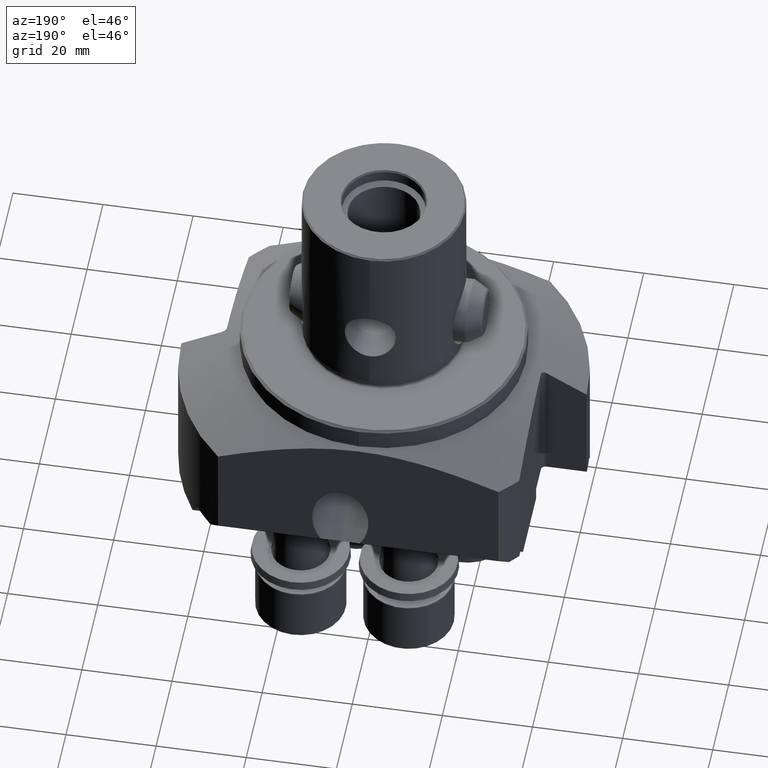
[diagram: clean part render]
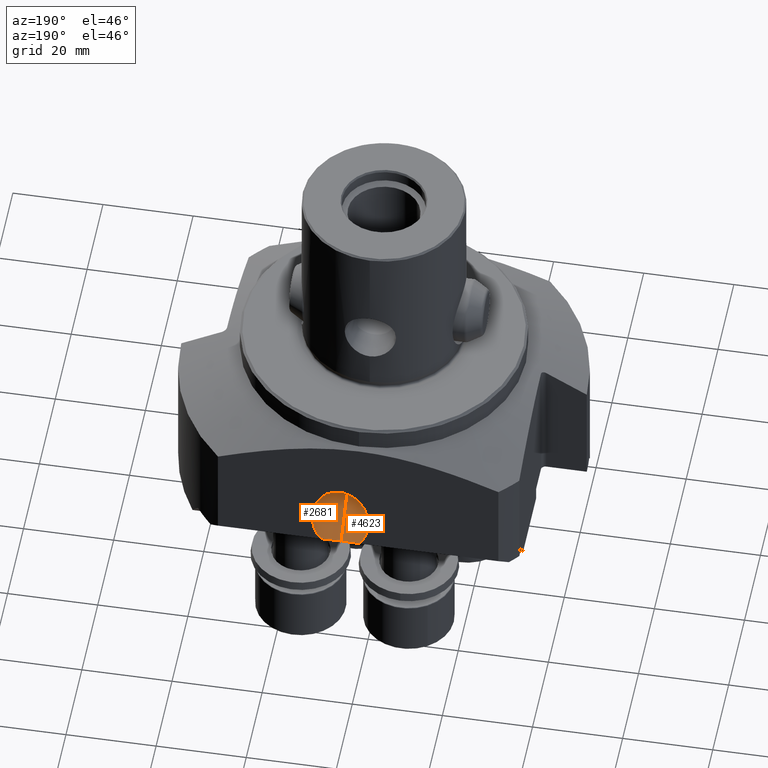
[diagram: same view with one multi-face feature highlighted, each face labeled with its STEP entity id]
A machine part, auxiliary view. The highlighted faces form ONE feature: a constant-radius fillet chain: 2 tangent blend faces with common blend radius 6.25 mm. The faces share edges in the B-rep.
Their STEP definitions:
[1] entity #4623 (Cylinder):
#2337=EDGE_CURVE('NONE',#3913,#3891,#6474,.T.);
#2583=EDGE_CURVE('NONE',#3209,#3891,#6763,.T.);
#2761=EDGE_CURVE('NONE',#3613,#3913,#6967,.T.);
#2847=VERTEX_POINT('NONE',#7060);
#3209=VERTEX_POINT('NONE',#7462);
#3613=VERTEX_POINT('NONE',#7911);
#3745=EDGE_CURVE('NONE',#2847,#3613,#8066,.T.);
#3891=VERTEX_POINT('NONE',#8224);
#3913=VERTEX_POINT('NONE',#8249);
#4005=EDGE_CURVE('NONE',#2847,#3209,#8351,.T.);
#4623=ADVANCED_FACE('NONE',(#9052),#9053,.F.);
#6474=(B_SPLINE_CURVE(3,(#11189,#11190,#11191,#11192),.UNSPECIFIED.,.F.,.F.)B_SPLINE_CURVE_WITH_KNOTS((4,4),(3.14159265358978,5.53863255819968),.UNSPECIFIED.)RATIONAL_B_SPLINE_CURVE((1.0,0.575824546262807,0.575824546262807,1.0))BOUNDED_CURVE()REPRESENTATION_ITEM('')GEOMETRIC_REPRESENTATION_ITEM()CURVE());
#6763=CIRCLE('',#11614,6.25);
#6967=LINE('',#11916,#11917);
#7060=CARTESIAN_POINT('',(4.00000000000012,17.4739808997859,-21.812815664618));
#7462=CARTESIAN_POINT('',(4.00000000000022,31.3305826175839,-35.6694173824161));
#7911=CARTESIAN_POINT('',(4.00000000000018,26.3128156646177,-12.9739808997862));
#8066=CIRCLE('',#13527,6.25);
#8224=CARTESIAN_POINT('',(-0.235268586524423,32.5,-34.5));
#8249=CARTESIAN_POINT('',(4.00000000000023,32.5,-19.1611652351685));
#8351=LINE('',#13952,#13953);
#9052=FACE_OUTER_BOUND('',#15051,.T.);
#9053=CYLINDRICAL_SURFACE('',#15052,6.25);
#11189=CARTESIAN_POINT('',(4.00000000000023,32.5,-19.1611652351685));
#11190=CARTESIAN_POINT('',(-2.74034712927806,32.5,-19.1611652351684));
#11191=CARTESIAN_POINT('',(-5.19205955569464,32.5,-28.0405104364009));
#11192=CARTESIAN_POINT('',(-0.235268586524423,32.5,-34.5));
#11614=AXIS2_PLACEMENT_3D('',#18521,#18522,#18523);
#11916=CARTESIAN_POINT('',(4.00000000000034,48.5202044210105,-35.1813696561791));
#11917=VECTOR('',#18795,1000.0);
#13527=AXIS2_PLACEMENT_3D('',#20148,#20149,#20150);
#13952=CARTESIAN_POINT('',(4.00000000000028,39.6813696561786,-44.0202044210109));
#13953=VECTOR('',#20503,1000.0);
#15051=EDGE_LOOP('',(#21405,#21406,#21407,#21408,#21409));
#15052=AXIS2_PLACEMENT_3D('',#21410,#21411,#21412);
#18521=CARTESIAN_POINT('',(4.00000000000025,35.7499999999998,-31.2500000000002));
#18522=DIRECTION('',(0.0,0.707106781186545,-0.70710678118655));
#18523=DIRECTION('',(0.0,0.70710678118655,0.707106781186545));
#18795=DIRECTION('',(4.95161029716453E-015,0.707106781186544,-0.707106781186551));
#20148=CARTESIAN_POINT('',(4.00000000000015,21.8933982822018,-17.3933982822021));
#20149=DIRECTION('',(4.95161029716453E-015,0.707106781186544,-0.707106781186551));
#20150=DIRECTION('',(4.99600361081321E-015,0.707106781186551,0.707106781186544));
#20503=DIRECTION('',(4.95161029716453E-015,0.707106781186544,-0.707106781186551));
#21405=ORIENTED_EDGE('',*,*,#3745,.F.);
#21406=ORIENTED_EDGE('',*,*,#4005,.T.);
#21407=ORIENTED_EDGE('',*,*,#2583,.T.);
#21408=ORIENTED_EDGE('',*,*,#2337,.F.);
#21409=ORIENTED_EDGE('',*,*,#2761,.F.);
#21410=CARTESIAN_POINT('',(4.00000000000031,44.1007870385946,-39.600787038595));
#21411=DIRECTION('',(4.95161029716453E-015,0.707106781186544,-0.707106781186551));
#21412=DIRECTION('',(4.9960036108132E-015,0.707106781186551,0.707106781186544));
[2] entity #2681 (Cylinder):
#2681=ADVANCED_FACE('NONE',(#6878),#6879,.F.);
#2761=EDGE_CURVE('NONE',#3613,#3913,#6967,.T.);
#2773=VERTEX_POINT('NONE',#6980);
#2847=VERTEX_POINT('NONE',#7060);
#3209=VERTEX_POINT('NONE',#7462);
#3613=VERTEX_POINT('NONE',#7911);
#3777=EDGE_CURVE('NONE',#2773,#3209,#8098,.T.);
#3913=VERTEX_POINT('NONE',#8249);
#4005=EDGE_CURVE('NONE',#2847,#3209,#8351,.T.);
#4679=EDGE_CURVE('NONE',#3613,#2847,#9114,.T.);
#4897=EDGE_CURVE('NONE',#2773,#3913,#9358,.T.);
#6878=FACE_OUTER_BOUND('',#11797,.T.);
#6879=CYLINDRICAL_SURFACE('',#11798,6.25);
#6967=LINE('',#11916,#11917);
#6980=CARTESIAN_POINT('',(8.23526858652492,32.5,-34.5));
#7060=CARTESIAN_POINT('',(4.00000000000012,17.4739808997859,-21.812815664618));
#7462=CARTESIAN_POINT('',(4.00000000000022,31.3305826175839,-35.6694173824161));
#7911=CARTESIAN_POINT('',(4.00000000000018,26.3128156646177,-12.9739808997862));
#8098=CIRCLE('',#13571,6.25);
#8249=CARTESIAN_POINT('',(4.00000000000023,32.5,-19.1611652351685));
#8351=LINE('',#13952,#13953);
#9114=CIRCLE('',#15133,6.25);
#9358=(B_SPLINE_CURVE(3,(#15523,#15524,#15525,#15526),.UNSPECIFIED.,.F.,.F.)B_SPLINE_CURVE_WITH_KNOTS((4,4),(0.744552748979898,3.14159265358978),.UNSPECIFIED.)RATIONAL_B_SPLINE_CURVE((1.0,0.57582454626281,0.57582454626281,1.0))BOUNDED_CURVE()REPRESENTATION_ITEM('')GEOMETRIC_REPRESENTATION_ITEM()CURVE());
#11797=EDGE_LOOP('',(#18692,#18693,#18694,#18695,#18696));
#11798=AXIS2_PLACEMENT_3D('',#18697,#18698,#18699);
#11916=CARTESIAN_POINT('',(4.00000000000034,48.5202044210105,-35.1813696561791));
#11917=VECTOR('',#18795,1000.0);
#13571=AXIS2_PLACEMENT_3D('',#20174,#20175,#20176);
#13952=CARTESIAN_POINT('',(4.00000000000028,39.6813696561786,-44.0202044210109));
#13953=VECTOR('',#20503,1000.0);
#15133=AXIS2_PLACEMENT_3D('',#21478,#21479,#21480);
#15523=CARTESIAN_POINT('',(8.23526858652492,32.5,-34.5));
#15524=CARTESIAN_POINT('',(13.1920595556951,32.5,-28.0405104364009));
#15525=CARTESIAN_POINT('',(10.7403471292785,32.5,-19.1611652351685));
#15526=CARTESIAN_POINT('',(4.00000000000023,32.5,-19.1611652351685));
#18692=ORIENTED_EDGE('',*,*,#4005,.F.);
#18693=ORIENTED_EDGE('',*,*,#4679,.F.);
#18694=ORIENTED_EDGE('',*,*,#2761,.T.);
#18695=ORIENTED_EDGE('',*,*,#4897,.F.);
#18696=ORIENTED_EDGE('',*,*,#3777,.T.);
#18697=CARTESIAN_POINT('',(4.00000000000031,44.1007870385946,-39.600787038595));
#18698=DIRECTION('',(4.95161029716453E-015,0.707106781186544,-0.707106781186551));
#18699=DIRECTION('',(4.9960036108132E-015,0.707106781186551,0.707106781186544));
#18795=DIRECTION('',(4.95161029716453E-015,0.707106781186544,-0.707106781186551));
#20174=CARTESIAN_POINT('',(4.00000000000025,35.7499999999998,-31.2500000000002));
#20175=DIRECTION('',(6.46234853557052E-031,0.707106781186545,-0.70710678118655));
#20176=DIRECTION('',(-1.80411241501588E-015,0.70710678118655,0.707106781186545));
#20503=DIRECTION('',(4.95161029716453E-015,0.707106781186544,-0.707106781186551));
#21478=CARTESIAN_POINT('',(4.00000000000015,21.8933982822018,-17.3933982822021));
#21479=DIRECTION('',(4.95161029716453E-015,0.707106781186544,-0.707106781186551));
#21480=DIRECTION('',(4.99600361081321E-015,0.707106781186551,0.707106781186544));